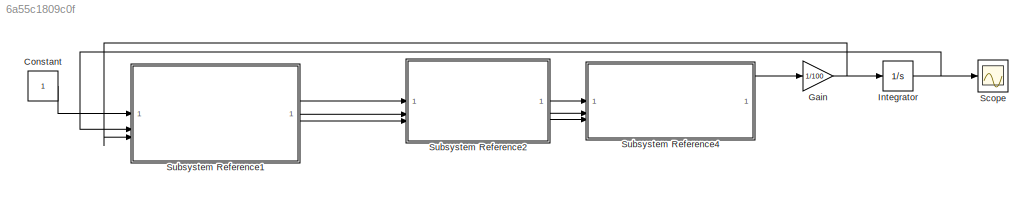
MODEL slx_6a55c1809c0f
KIND model
CONFIG AbsTol = auto
CONFIG EnableMultiTasking = off
CONFIG FixedStep = auto
CONFIG MaxStep = auto
CONFIG MinStep = auto
CONFIG RelTol = 1e-3
CONFIG SampleTimeConstraint = Unconstrained
CONFIG SolverName = ode15s
CONFIG StartTime = 0.0
CONFIG StopTime = 0.01
BLOCK [Constant] Constant
BLOCK [Gain] Gain
  Gain = 1/100
BLOCK [Integrator] Integrator
BLOCK [Scope] Scope
  ActiveDisplayYMaximum = 0.053369021624233737
  ActiveDisplayYMinimum = -0.036211036494644855
  Floating = off
  GraphicalSettings = {"AxesScalingProperties":{"AlignXAxis":"Center","AlignYAxis":"Center","AutoScaleXAxisLimits":false,"AxesScaling":"Manual","AxesScalingNumUpdates":10,"ExpandOnly":true,"ScaleAxesLimitsAtStop":false,"XAxisDataRange":100,"YAxisDataRange":80},"DisplayProperties":{"ColorOrder":["auto","auto","auto","auto","auto","auto","auto","auto","auto","auto","auto","auto","auto","auto","auto","auto","auto","auto",...<+2010ch>
  MultipleDisplayCache = [{"MaxYLimMag":0.0203971592167844,"MaxYLimReal":0.053369021624233737,"MinYLimMag":0,"MinYLimReal":-0.036211036494644855,"PlotAsMagnitudePhase":false,"ShowGrid":true,"ShowLegend":false,"Title":"%<SignalLabel>","YLabel":""}]
  NumInputPorts = 1
  ScopeFrameLocation = window
  WasSavedAsWebScope = on
  WindowPosition = [1.000000,41.000000,1707.000000,1004.000000,]
BLOCK [SubSystem] Subsystem Reference1
  J_motor = 500*10^-9
  L = 350*10^-6
  R = 10
  ReferencedSubsystem = DCMotor
  km = 16
  kw = 60
  vis_friction_coef_motor = 0.1
BLOCK [SubSystem] Subsystem Reference2
  J_gear = 2.4*10^-6
  ReferencedSubsystem = Gear
  i_gear = 100
  vis_friction_coef_gear = 0.1
BLOCK [SubSystem] Subsystem Reference4
  J_pinion = 1*10^-6
  ReferencedSubsystem = RackAndPinion
  i_coef = 20
  m_rack = 1
  vis_friction_coef_rack = 0.1
LINE Constant:1 -> Subsystem Reference1:1
NET Gain:1 -> Integrator:1, Subsystem Reference1:3
NET Integrator:1 -> Scope:1, Subsystem Reference1:2
LINE Subsystem Reference1:1 -> Subsystem Reference2:1
LINE Subsystem Reference1:2 -> Subsystem Reference2:2
LINE Subsystem Reference1:3 -> Subsystem Reference2:3
LINE Subsystem Reference2:1 -> Subsystem Reference4:1
LINE Subsystem Reference2:2 -> Subsystem Reference4:2
LINE Subsystem Reference2:3 -> Subsystem Reference4:3
LINE Subsystem Reference4:1 -> Gain:1
note: NET lines group one-source signal fan-out (src -> all destinations, sorted); 1:1 wires keep LINE
